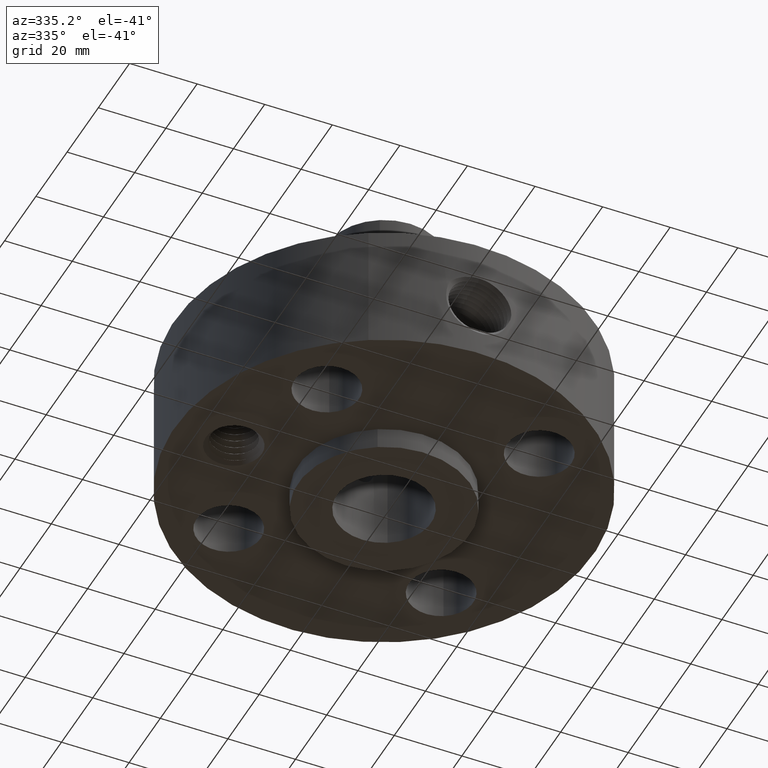
[diagram: clean part render]
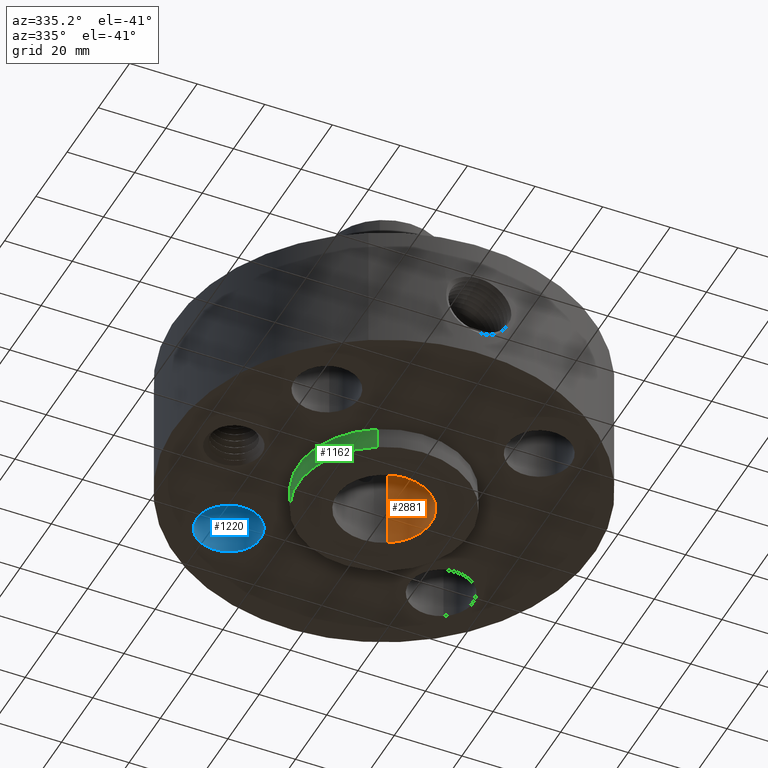
[diagram: same view with three faces highlighted in distinct colors, each labeled with its STEP entity id]
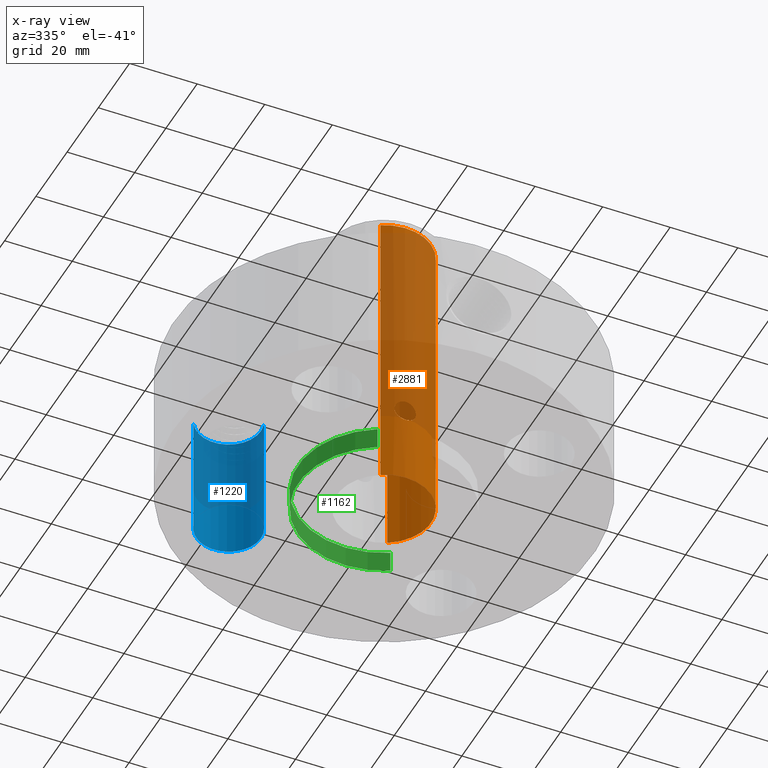
[diagram: x-ray of the same camera — body ghosted, the three highlighted faces saturated]
A machine part, auxiliary view with three faces highlighted in distinct colors.
The next image is the same camera in x-ray (body ghosted, the three faces saturated) — at least one of them is partly hidden behind the body in this view.
Their STEP definitions:

[orange] entity #2881 — the highlighted cylindrical surface (partial cylindrical patch) has radius 13.9319 mm, axis along (0, 0, -1).
#2083=AXIS2_PLACEMENT_3D('Circle Axis2P3D',#2081,#2082,$) ;
#2812=AXIS2_PLACEMENT_3D('Cylinder Axis2P3D',#2809,#2810,#2811) ;
#2816=AXIS2_PLACEMENT_3D('Circle Axis2P3D',#2814,#2815,$) ;
#2081=CARTESIAN_POINT('Axis2P3D Location',(0.,0.,0.)) ;
#2085=CARTESIAN_POINT('Vertex',(0.262964907925,0.481354035199,-2.79741234551E-015)) ;
#2087=CARTESIAN_POINT('Vertex',(-0.262964907925,-0.481354035199,-2.79741234551E-015)) ;
#2809=CARTESIAN_POINT('Axis2P3D Location',(0.,0.,1.75000000001)) ;
#2814=CARTESIAN_POINT('Axis2P3D Location',(0.,0.,3.50000000001)) ;
#2818=CARTESIAN_POINT('Vertex',(0.262964907925,0.481354035199,3.50000000001)) ;
#2820=CARTESIAN_POINT('Vertex',(-0.262964907925,-0.481354035199,3.50000000001)) ;
#2823=CARTESIAN_POINT('Line Origine',(0.262964907925,0.481354035199,1.75000000001)) ;
#2828=CARTESIAN_POINT('Line Origine',(-0.262964907925,-0.481354035199,1.75000000001)) ;
#2840=CARTESIAN_POINT('Control Point',(0.109697820237,-0.537418494507,0.880071807678)) ;
#2841=CARTESIAN_POINT('Control Point',(0.103067335951,-0.53877190843,0.867934787603)) ;
#2842=CARTESIAN_POINT('Control Point',(0.0947692780536,-0.540359191076,0.856734870578)) ;
#2843=CARTESIAN_POINT('Control Point',(0.0849741111029,-0.54203938782,0.846760052713)) ;
#2844=CARTESIAN_POINT('Control Point',(0.0556321136797,-0.546263345503,0.824183076501)) ;
#2845=CARTESIAN_POINT('Control Point',(0.0194711013316,-0.548896485681,0.813249176113)) ;
#2846=CARTESIAN_POINT('Control Point',(-0.00442353275349,-0.549258241032,0.81182599929)) ;
#2847=CARTESIAN_POINT('Control Point',(-0.0534044893536,-0.547053451989,0.820539305998)) ;
#2848=CARTESIAN_POINT('Control Point',(-0.092979849812,-0.541117492994,0.850658990384)) ;
#2849=CARTESIAN_POINT('Control Point',(-0.109256659179,-0.537669514088,0.871449175776)) ;
#2850=CARTESIAN_POINT('Control Point',(-0.126227903508,-0.533809465879,0.911087553158)) ;
#2851=CARTESIAN_POINT('Control Point',(-0.125904763066,-0.533844140944,0.953559572305)) ;
#2852=CARTESIAN_POINT('Control Point',(-0.123016801994,-0.53455170038,0.969999932408)) ;
#2853=CARTESIAN_POINT('Control Point',(-0.117516814889,-0.535822481942,0.985615618622)) ;
#2854=CARTESIAN_POINT('Control Point',(-0.109697820237,-0.537418494507,0.99992819233)) ;
#2855=CARTESIAN_POINT('Vertex',(0.109697820237,-0.537418494507,0.880071807678)) ;
#2857=CARTESIAN_POINT('Vertex',(-0.109697820237,-0.537418494507,0.99992819233)) ;
#2861=CARTESIAN_POINT('Control Point',(-0.109697820237,-0.537418494507,0.99992819233)) ;
#2862=CARTESIAN_POINT('Control Point',(-0.10306733595,-0.53877190843,1.01206521241)) ;
#2863=CARTESIAN_POINT('Control Point',(-0.0947692780516,-0.540359191076,1.02326512943)) ;
#2864=CARTESIAN_POINT('Control Point',(-0.084974111106,-0.542039387819,1.03323994729)) ;
#2865=CARTESIAN_POINT('Control Point',(-0.0556321136824,-0.546263345503,1.05581692351)) ;
#2866=CARTESIAN_POINT('Control Point',(-0.0194711013336,-0.548896485681,1.06675082389)) ;
#2867=CARTESIAN_POINT('Control Point',(0.00442353275397,-0.549258241032,1.06817400072)) ;
#2868=CARTESIAN_POINT('Control Point',(0.0534044893528,-0.547053451989,1.05946069401)) ;
#2869=CARTESIAN_POINT('Control Point',(0.0929798498106,-0.541117492995,1.02934100963)) ;
#2870=CARTESIAN_POINT('Control Point',(0.109256659179,-0.537669514088,1.00855082423)) ;
#2871=CARTESIAN_POINT('Control Point',(0.126227903508,-0.533809465879,0.96891244685)) ;
#2872=CARTESIAN_POINT('Control Point',(0.125904763066,-0.533844140944,0.926440427703)) ;
#2873=CARTESIAN_POINT('Control Point',(0.123016801994,-0.53455170038,0.9100000676)) ;
#2874=CARTESIAN_POINT('Control Point',(0.11751681489,-0.535822481942,0.894384381386)) ;
#2875=CARTESIAN_POINT('Control Point',(0.109697820237,-0.537418494507,0.880071807678)) ;
#2082=DIRECTION('Axis2P3D Direction',(0.,0.,-0.0393700787402)) ;
#2810=DIRECTION('Axis2P3D Direction',(0.,0.,-0.0393700787402)) ;
#2811=DIRECTION('Axis2P3D XDirection',(-0.0188750212049,-0.0345504945626,0.)) ;
#2815=DIRECTION('Axis2P3D Direction',(0.,0.,-0.0393700787402)) ;
#2824=DIRECTION('Vector Direction',(0.,0.,-0.0393700787402)) ;
#2829=DIRECTION('Vector Direction',(0.,0.,-0.0393700787402)) ;
#2825=VECTOR('Line Direction',#2824,0.0393700787402) ;
#2830=VECTOR('Line Direction',#2829,0.0393700787402) ;
#2834=ORIENTED_EDGE('',*,*,#2822,.F.) ;
#2835=ORIENTED_EDGE('',*,*,#2827,.T.) ;
#2836=ORIENTED_EDGE('',*,*,#2089,.T.) ;
#2837=ORIENTED_EDGE('',*,*,#2832,.F.) ;
#2878=ORIENTED_EDGE('',*,*,#2859,.F.) ;
#2879=ORIENTED_EDGE('',*,*,#2876,.F.) ;
#2880=FACE_BOUND('',#2877,.T.) ;
#2881=ADVANCED_FACE('PartBody',(#2838,#2880),#2813,.F.) ;
#2839=B_SPLINE_CURVE_WITH_KNOTS('',5,(#2840,#2841,#2842,#2843,#2844,#2845,#2846,#2847,#2848,#2849,#2850,#2851,#2852,#2853,#2854),.UNSPECIFIED.,.F.,.U.,(6,3,3,3,6),(0.,2.49581534422,6.62922007925,11.2094512143,14.1526399752),.UNSPECIFIED.) ;
#2860=B_SPLINE_CURVE_WITH_KNOTS('',5,(#2861,#2862,#2863,#2864,#2865,#2866,#2867,#2868,#2869,#2870,#2871,#2872,#2873,#2874,#2875),.UNSPECIFIED.,.F.,.U.,(6,3,3,3,6),(0.,2.49581534451,6.62922007943,11.2094512143,14.1526399753),.UNSPECIFIED.) ;
#2084=CIRCLE('generated circle',#2083,0.548500000002) ;
#2817=CIRCLE('generated circle',#2816,0.548500000002) ;
#2813=CYLINDRICAL_SURFACE('generated cylinder',#2812,0.548500000002) ;
#2089=EDGE_CURVE('',#2086,#2088,#2084,.T.) ;
#2822=EDGE_CURVE('',#2819,#2821,#2817,.T.) ;
#2827=EDGE_CURVE('',#2819,#2086,#2826,.T.) ;
#2832=EDGE_CURVE('',#2821,#2088,#2831,.T.) ;
#2859=EDGE_CURVE('',#2856,#2858,#2839,.T.) ;
#2876=EDGE_CURVE('',#2858,#2856,#2860,.T.) ;
#2833=EDGE_LOOP('',(#2834,#2835,#2836,#2837)) ;
#2877=EDGE_LOOP('',(#2878,#2879)) ;
#2838=FACE_OUTER_BOUND('',#2833,.T.) ;
#2826=LINE('Line',#2823,#2825) ;
#2831=LINE('Line',#2828,#2830) ;
#2086=VERTEX_POINT('',#2085) ;
#2088=VERTEX_POINT('',#2087) ;
#2819=VERTEX_POINT('',#2818) ;
#2821=VERTEX_POINT('',#2820) ;
#2856=VERTEX_POINT('',#2855) ;
#2858=VERTEX_POINT('',#2857) ;

[blue] entity #1220 — the highlighted cylindrical surface (edge-blend (fillet) strip) has radius 9.525 mm, axis along (-0, 0, -1).
#290=AXIS2_PLACEMENT_3D('Circle Axis2P3D',#288,#289,$) ;
#529=AXIS2_PLACEMENT_3D('Circle Axis2P3D',#527,#528,$) ;
#1195=AXIS2_PLACEMENT_3D('Cylinder Axis2P3D',#1192,#1193,#1194) ;
#283=CARTESIAN_POINT('Vertex',(-0.908343406371,1.0576522901,0.250000000001)) ;
#285=CARTESIAN_POINT('Vertex',(-1.56653032779,1.41722144406,0.250000000001)) ;
#288=CARTESIAN_POINT('Axis2P3D Location',(-1.23743686708,1.23743686708,0.250000000001)) ;
#527=CARTESIAN_POINT('Axis2P3D Location',(-1.23743686708,1.23743686708,1.75000000001)) ;
#531=CARTESIAN_POINT('Vertex',(-1.56653032779,1.41722144406,1.75000000001)) ;
#533=CARTESIAN_POINT('Vertex',(-0.908343406371,1.0576522901,1.75000000001)) ;
#1192=CARTESIAN_POINT('Axis2P3D Location',(-1.23743686708,1.23743686708,1.74606299213)) ;
#1197=CARTESIAN_POINT('Line Origine',(-0.908343406371,1.0576522901,1.)) ;
#1202=CARTESIAN_POINT('Line Origine',(-1.56653032779,1.41722144406,1.)) ;
#289=DIRECTION('Axis2P3D Direction',(0.,0.,-0.0393700787402)) ;
#528=DIRECTION('Axis2P3D Direction',(0.,0.,-0.0393700787402)) ;
#1193=DIRECTION('Axis2P3D Direction',(-0.,0.,-0.0393700787402)) ;
#1194=DIRECTION('Axis2P3D XDirection',(-0.0345504945626,0.0188750212049,0.)) ;
#1198=DIRECTION('Vector Direction',(0.,0.,-0.0393700787402)) ;
#1203=DIRECTION('Vector Direction',(0.,0.,-0.0393700787402)) ;
#1199=VECTOR('Line Direction',#1198,0.0393700787402) ;
#1204=VECTOR('Line Direction',#1203,0.0393700787402) ;
#1215=ORIENTED_EDGE('',*,*,#1206,.F.) ;
#1216=ORIENTED_EDGE('',*,*,#292,.T.) ;
#1217=ORIENTED_EDGE('',*,*,#1201,.T.) ;
#1218=ORIENTED_EDGE('',*,*,#535,.F.) ;
#1220=ADVANCED_FACE('PartBody',(#1219),#1196,.F.) ;
#291=CIRCLE('generated circle',#290,0.375000000002) ;
#530=CIRCLE('generated circle',#529,0.375000000002) ;
#1196=CYLINDRICAL_SURFACE('generated cylinder',#1195,0.375000000002) ;
#292=EDGE_CURVE('',#286,#284,#291,.T.) ;
#535=EDGE_CURVE('',#532,#534,#530,.T.) ;
#1201=EDGE_CURVE('',#284,#534,#1200,.F.) ;
#1206=EDGE_CURVE('',#286,#532,#1205,.F.) ;
#1214=EDGE_LOOP('',(#1215,#1216,#1217,#1218)) ;
#1219=FACE_OUTER_BOUND('',#1214,.T.) ;
#1200=LINE('Line',#1197,#1199) ;
#1205=LINE('Line',#1202,#1204) ;
#284=VERTEX_POINT('',#283) ;
#286=VERTEX_POINT('',#285) ;
#532=VERTEX_POINT('',#531) ;
#534=VERTEX_POINT('',#533) ;

[green] entity #1162 — the highlighted cylindrical surface (partial cylindrical patch) has radius 25.4 mm, axis along (0, 0, -1).
#254=AXIS2_PLACEMENT_3D('Circle Axis2P3D',#252,#253,$) ;
#1123=AXIS2_PLACEMENT_3D('Cylinder Axis2P3D',#1120,#1121,#1122) ;
#1153=AXIS2_PLACEMENT_3D('Circle Axis2P3D',#1151,#1152,$) ;
#247=CARTESIAN_POINT('Vertex',(0.479425538606,0.877582561894,0.250000000001)) ;
#249=CARTESIAN_POINT('Vertex',(-0.479425538606,-0.877582561894,0.250000000001)) ;
#252=CARTESIAN_POINT('Axis2P3D Location',(0.,0.,0.250000000001)) ;
#1120=CARTESIAN_POINT('Axis2P3D Location',(0.,0.,1.75000000001)) ;
#1129=CARTESIAN_POINT('Vertex',(0.479425538606,0.877582561894,0.)) ;
#1131=CARTESIAN_POINT('Vertex',(-0.479425538606,-0.877582561894,0.)) ;
#1134=CARTESIAN_POINT('Line Origine',(0.479425538606,0.877582561894,0.125000000001)) ;
#1139=CARTESIAN_POINT('Line Origine',(-0.479425538606,-0.877582561894,0.125000000001)) ;
#1151=CARTESIAN_POINT('Axis2P3D Location',(0.,0.,0.)) ;
#253=DIRECTION('Axis2P3D Direction',(0.,0.,-0.0393700787402)) ;
#1121=DIRECTION('Axis2P3D Direction',(0.,0.,-0.0393700787402)) ;
#1122=DIRECTION('Axis2P3D XDirection',(-0.0188750212049,-0.0345504945626,0.)) ;
#1135=DIRECTION('Vector Direction',(0.,0.,-0.0393700787402)) ;
#1140=DIRECTION('Vector Direction',(0.,0.,-0.0393700787402)) ;
#1152=DIRECTION('Axis2P3D Direction',(0.,0.,-0.0393700787402)) ;
#1136=VECTOR('Line Direction',#1135,0.0393700787402) ;
#1141=VECTOR('Line Direction',#1140,0.0393700787402) ;
#1157=ORIENTED_EDGE('',*,*,#1155,.F.) ;
#1158=ORIENTED_EDGE('',*,*,#1143,.T.) ;
#1159=ORIENTED_EDGE('',*,*,#256,.T.) ;
#1160=ORIENTED_EDGE('',*,*,#1138,.F.) ;
#1162=ADVANCED_FACE('PartBody',(#1161),#1124,.T.) ;
#255=CIRCLE('generated circle',#254,1.) ;
#1154=CIRCLE('generated circle',#1153,1.) ;
#1124=CYLINDRICAL_SURFACE('generated cylinder',#1123,1.) ;
#256=EDGE_CURVE('',#250,#248,#255,.T.) ;
#1138=EDGE_CURVE('',#1130,#248,#1137,.F.) ;
#1143=EDGE_CURVE('',#1132,#250,#1142,.F.) ;
#1155=EDGE_CURVE('',#1132,#1130,#1154,.T.) ;
#1156=EDGE_LOOP('',(#1157,#1158,#1159,#1160)) ;
#1161=FACE_OUTER_BOUND('',#1156,.T.) ;
#1137=LINE('Line',#1134,#1136) ;
#1142=LINE('Line',#1139,#1141) ;
#248=VERTEX_POINT('',#247) ;
#250=VERTEX_POINT('',#249) ;
#1130=VERTEX_POINT('',#1129) ;
#1132=VERTEX_POINT('',#1131) ;